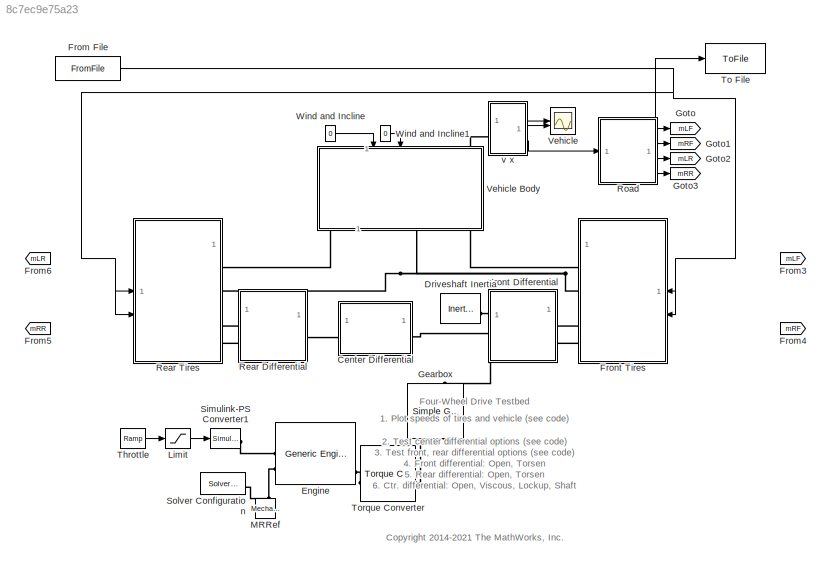
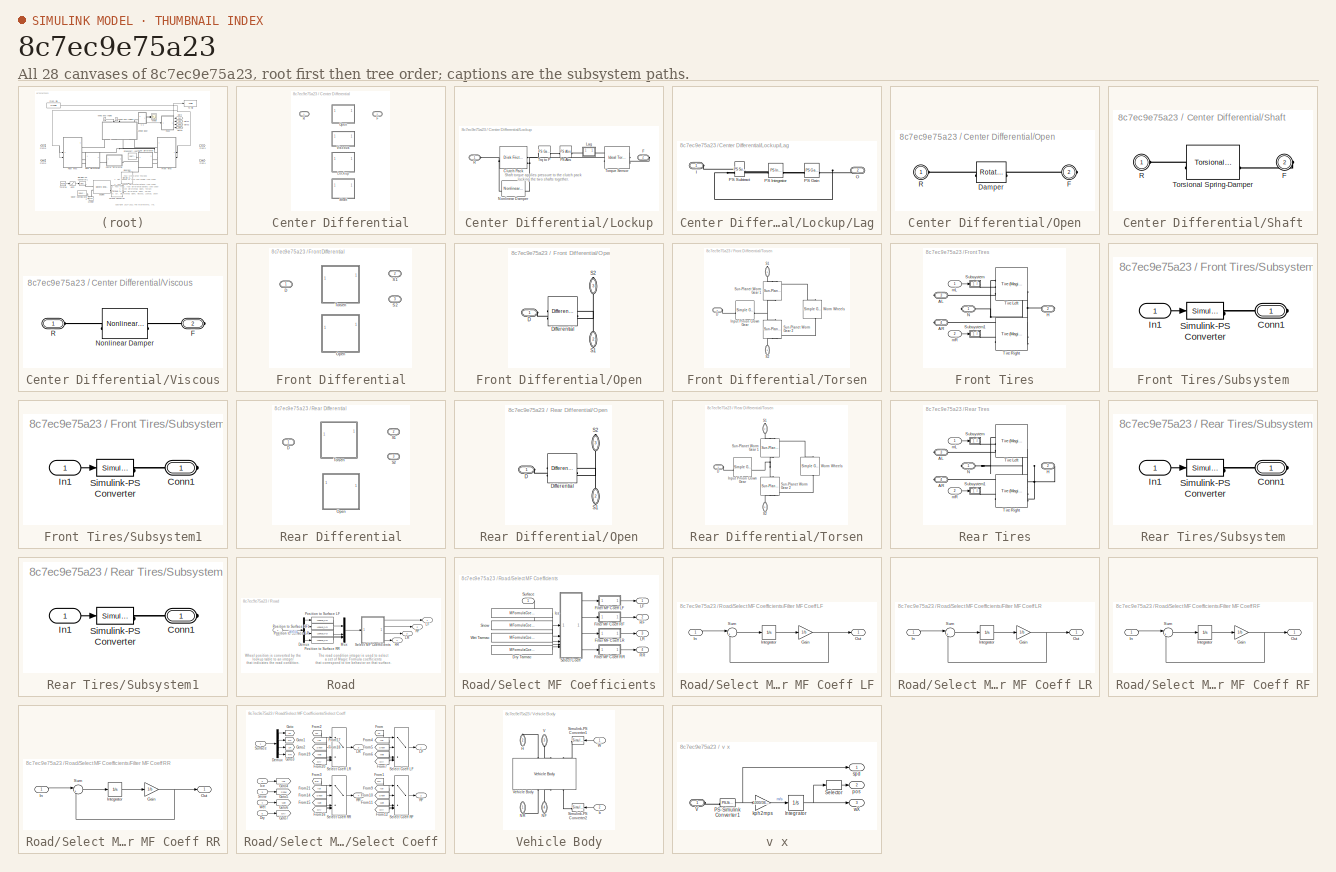
[diagram: thumbnail index - all 28 canvases of the model, root first then tree order]
MODEL slx_8c7ec9e75a23
KIND model
CONFIG AbsTol = 1e-3
CONFIG EnableMultiTasking = on
CONFIG FixedStep = auto
CONFIG MaxStep = auto
CONFIG MinStep = auto
CONFIG PreLoadFcn = MFormulaCoeff.DryTarmac = [10 1.9 1 0.97];\nMFormulaCoeff.WetTarmac = [12 2.3 0.82 1];\nMFormulaCoeff.Snow         = [5 2 0.3 1];\nMFormulaCoeff.Ice            = [4 2 0.1 1];\n
CONFIG RelTol = 1e-3
CONFIG SampleTimeConstraint = Unconstrained
CONFIG SolverName = VariableStepAuto
CONFIG StartTime = 0.0
CONFIG StopTime = 5
BLOCK [SubSystem] Center Differential
  AttributesFormatString = %<ActiveVariant>
  LabelModeActiveChoice = Viscous
  Variant = on
  VariantControlMode = label
BLOCK [PMIOPort] Center Differential/F
  Port = 2
  Side = Right
BLOCK [SubSystem] Center Differential/Lockup
  Tag = PublishSubsystem
  VariantControl = Lockup
BLOCK [Reference] Center Differential/Lockup/Clutch Pack  REF=sdl_lib/Clutches/Disk Friction Clutch
  SourceBlock = sdl_lib/Clutches/Disk Friction Clutch
  SourceType = Disk Friction Clutch
BLOCK [PMIOPort] Center Differential/Lockup/F
  Port = 2
  Side = Right
BLOCK [SubSystem] Center Differential/Lockup/Lag
  NameLocation = top
BLOCK [PMIOPort] Center Differential/Lockup/Lag/I
  Side = Left
BLOCK [PMIOPort] Center Differential/Lockup/Lag/O
  Port = 2
  Side = Right
BLOCK [Reference] Center Differential/Lockup/Lag/PS Gain  REF=fl_ps_legacy_lib/Legacy Physical
Signals/Functions/PS Gain
  SourceBlock = fl_ps_legacy_lib/Legacy Physical\nSignals/Functions/PS Gain
  SourceType = PS Gain
BLOCK [Reference] Center Differential/Lockup/Lag/PS Integrator  REF=fl_ps_legacy_lib/Legacy Physical
Signals/Linear Operators/PS Integrator
  SourceBlock = fl_ps_legacy_lib/Legacy Physical\nSignals/Linear Operators/PS Integrator
  SourceType = PS Integrator
BLOCK [Reference] Center Differential/Lockup/Lag/PS Subtract  REF=fl_ps_legacy_lib/Legacy Physical
Signals/Functions/PS Subtract
  SourceBlock = fl_ps_legacy_lib/Legacy Physical\nSignals/Functions/PS Subtract
  SourceType = PS Subtract
BLOCK [Reference] Center Differential/Lockup/Nonlinear Damper  REF=sdl_lib/Couplings & Drives/Springs & Dampers/Nonlinear Rotational
Damper
  SourceBlock = sdl_lib/Couplings & Drives/Springs & Dampers/Nonlinear Rotational\nDamper
  SourceType = Nonlinear Rotational\nDamper
BLOCK [Reference] Center Differential/Lockup/PS Abs  REF=fl_ps_legacy_lib/Legacy Physical
Signals/Nonlinear Operators/PS Abs
  NameLocation = top
  SourceBlock = fl_ps_legacy_lib/Legacy Physical\nSignals/Nonlinear Operators/PS Abs
  SourceType = PS Abs
BLOCK [PMIOPort] Center Differential/Lockup/R
  Side = Left
BLOCK [Reference] Center Differential/Lockup/Torque Sensor  REF=fl_lib/Mechanical/Mechanical Sensors/Ideal Torque Sensor
  SourceBlock = fl_lib/Mechanical/Mechanical Sensors/Ideal Torque Sensor
  SourceType = Ideal Torque Sensor
BLOCK [Reference] Center Differential/Lockup/Trq to P  REF=fl_ps_legacy_lib/Legacy Physical
Signals/Functions/PS Gain
  NameLocation = top
  SourceBlock = fl_ps_legacy_lib/Legacy Physical\nSignals/Functions/PS Gain
  SourceType = PS Gain
BLOCK [SubSystem] Center Differential/Open
  VariantControl = Open
BLOCK [Reference] Center Differential/Open/Damper  REF=fl_lib/Mechanical/Rotational Elements/Rotational Damper
  AttributesFormatString = Damping = %<D>
  SourceBlock = fl_lib/Mechanical/Rotational Elements/Rotational Damper
  SourceType = Rotational Damper
BLOCK [PMIOPort] Center Differential/Open/F
  Port = 2
  Side = Right
BLOCK [PMIOPort] Center Differential/Open/R
  Side = Left
BLOCK [PMIOPort] Center Differential/R
  Side = Left
BLOCK [SubSystem] Center Differential/Shaft
  VariantControl = Shaft
BLOCK [PMIOPort] Center Differential/Shaft/F
  Port = 2
  Side = Right
BLOCK [PMIOPort] Center Differential/Shaft/R
  Side = Left
BLOCK [Reference] Center Differential/Shaft/Torsional Spring-Damper  REF=sdl_lib/Couplings & Drives/Torsional
Spring-Damper
  SourceBlock = sdl_lib/Couplings & Drives/Torsional\nSpring-Damper
  SourceType = Torsional\nSpring-Damper
BLOCK [SubSystem] Center Differential/Viscous
  VariantControl = Viscous
BLOCK [PMIOPort] Center Differential/Viscous/F
  Port = 2
  Side = Right
BLOCK [Reference] Center Differential/Viscous/Nonlinear Damper  REF=sdl_lib/Couplings & Drives/Springs & Dampers/Nonlinear Rotational
Damper
  SourceBlock = sdl_lib/Couplings & Drives/Springs & Dampers/Nonlinear Rotational\nDamper
  SourceType = Nonlinear Rotational\nDamper
BLOCK [PMIOPort] Center Differential/Viscous/R
  Side = Left
BLOCK [Reference] Driveshaft Inertia  REF=fl_lib/Mechanical/Rotational Elements/Inertia
  NameLocation = top
  SourceBlock = fl_lib/Mechanical/Rotational Elements/Inertia
  SourceType = Inertia
BLOCK [Reference] Engine  REF=sdl_lib/Engines & Motors/Generic Engine
  SourceBlock = sdl_lib/Engines & Motors/Generic Engine
  SourceType = Generic Engine
BLOCK [FromFile] From File
  FileName = vecsent.mat
  SampleTime = 0
BLOCK [From] From3
  GotoTag = mLF
  NameLocation = top
  TagVisibility = global
BLOCK [From] From4
  GotoTag = mRF
  NameLocation = top
  TagVisibility = global
BLOCK [From] From5
  GotoTag = mRR
  NameLocation = top
  TagVisibility = global
BLOCK [From] From6
  GotoTag = mLR
  NameLocation = top
  TagVisibility = global
BLOCK [SubSystem] Front Differential
  AttributesFormatString = %<ActiveVariant>
  LabelModeActiveChoice = Open
  Variant = on
  VariantControlMode = label
BLOCK [PMIOPort] Front Differential/D
  Side = Left
BLOCK [SubSystem] Front Differential/Open
  VariantControl = Open
BLOCK [PMIOPort] Front Differential/Open/D
  Side = Left
BLOCK [Reference] Front Differential/Open/Differential  REF=sdl_lib/Gears/Differential
  SourceBlock = sdl_lib/Gears/Differential
  SourceType = Differential
BLOCK [PMIOPort] Front Differential/Open/S1
  NameLocation = left
  Port = 2
  Side = Right
BLOCK [PMIOPort] Front Differential/Open/S2
  NameLocation = left
  Port = 3
  Side = Right
BLOCK [PMIOPort] Front Differential/S1
  Port = 2
  Side = Right
BLOCK [PMIOPort] Front Differential/S2
  Port = 3
  Side = Right
BLOCK [SubSystem] Front Differential/Torsen
  VariantControl = Torsen
BLOCK [PMIOPort] Front Differential/Torsen/D
  Side = Left
BLOCK [Reference] Front Differential/Torsen/Input Pinion Crown Gear  REF=sdl_lib/Gears/Simple Gear
  SourceBlock = sdl_lib/Gears/Simple Gear
  SourceType = Simple Gear
BLOCK [PMIOPort] Front Differential/Torsen/S1
  NameLocation = left
  Port = 2
  Side = Right
BLOCK [PMIOPort] Front Differential/Torsen/S2
  NameLocation = left
  Port = 3
  Side = Right
BLOCK [Reference] Front Differential/Torsen/Sun-Planet Worm Gear 1  REF=sdl_lib/Gears/Planetary
Subcomponents/Sun-Planet Worm Gear
  NameLocation = right
  SourceBlock = sdl_lib/Gears/Planetary\nSubcomponents/Sun-Planet Worm Gear
  SourceType = Sun-Planet Worm Gear
BLOCK [Reference] Front Differential/Torsen/Sun-Planet Worm Gear 2  REF=sdl_lib/Gears/Planetary
Subcomponents/Sun-Planet Worm Gear
  NameLocation = right
  SourceBlock = sdl_lib/Gears/Planetary\nSubcomponents/Sun-Planet Worm Gear
  SourceType = Sun-Planet Worm Gear
BLOCK [Reference] Front Differential/Torsen/Worm Wheels  REF=sdl_lib/Gears/Simple Gear
  NameLocation = right
  SourceBlock = sdl_lib/Gears/Simple Gear
  SourceType = Simple Gear
BLOCK [SubSystem] Front Tires
BLOCK [PMIOPort] Front Tires/AL
  NameLocation = top
  Port = 3
  Side = Right
BLOCK [PMIOPort] Front Tires/AR
  Port = 4
  Side = Right
BLOCK [PMIOPort] Front Tires/H
  Port = 2
  Side = Right
BLOCK [PMIOPort] Front Tires/N
  NameLocation = top
  Side = Right
BLOCK [SubSystem] Front Tires/Subsystem
  NameLocation = top
BLOCK [PMIOPort] Front Tires/Subsystem/Conn1
  Side = Right
BLOCK [Inport] Front Tires/Subsystem/In1
BLOCK [Reference] Front Tires/Subsystem/Simulink-PS Converter  REF=nesl_utility/Simulink-PS
Converter
  SourceBlock = nesl_utility/Simulink-PS\nConverter
  SourceType = Simulink-PS\nConverter
BLOCK [SubSystem] Front Tires/Subsystem1
  NameLocation = top
BLOCK [PMIOPort] Front Tires/Subsystem1/Conn1
  Side = Right
BLOCK [Inport] Front Tires/Subsystem1/In1
BLOCK [Reference] Front Tires/Subsystem1/Simulink-PS Converter  REF=nesl_utility/Simulink-PS
Converter
  SourceBlock = nesl_utility/Simulink-PS\nConverter
  SourceType = Simulink-PS\nConverter
BLOCK [Reference] Front Tires/Tire Left  REF=sdl_lib/Tires & Vehicles/Tire (Magic Formula)
  NameLocation = top
  SourceBlock = sdl_lib/Tires & Vehicles/Tire (Magic Formula)
  SourceType = Tire (Magic Formula)
BLOCK [Reference] Front Tires/Tire Right  REF=sdl_lib/Tires & Vehicles/Tire (Magic Formula)
  SourceBlock = sdl_lib/Tires & Vehicles/Tire (Magic Formula)
  SourceType = Tire (Magic Formula)
BLOCK [Inport] Front Tires/mL
  NameLocation = top
BLOCK [Inport] Front Tires/mR
  Port = 2
BLOCK [Reference] Gearbox  REF=sdl_lib/Gears/Simple Gear
  NameLocation = left
  SourceBlock = sdl_lib/Gears/Simple Gear
  SourceType = Simple Gear
BLOCK [Goto] Goto
  GotoTag = mLF
  TagVisibility = global
BLOCK [Goto] Goto1
  GotoTag = mRF
  TagVisibility = global
BLOCK [Goto] Goto2
  GotoTag = mLR
  TagVisibility = global
BLOCK [Goto] Goto3
  GotoTag = mRR
  TagVisibility = global
BLOCK [Saturate] Limit
  LowerLimit = 0
  UpperLimit = 0.4
BLOCK [Reference] MRRef  REF=fl_lib/Mechanical/Rotational Elements/Mechanical
Rotational Reference
  NameLocation = left
  SourceBlock = fl_lib/Mechanical/Rotational Elements/Mechanical\nRotational Reference
  SourceType = Mechanical\nRotational Reference
BLOCK [SubSystem] Rear Differential
  AttributesFormatString = %<ActiveVariant>
  LabelModeActiveChoice = Open
  Variant = on
  VariantControlMode = label
BLOCK [PMIOPort] Rear Differential/D
  Side = Left
BLOCK [SubSystem] Rear Differential/Open
  Tag = PublishSubsystem
  VariantControl = Open
BLOCK [PMIOPort] Rear Differential/Open/D
  Side = Left
BLOCK [Reference] Rear Differential/Open/Differential  REF=sdl_lib/Gears/Differential
  SourceBlock = sdl_lib/Gears/Differential
  SourceType = Differential
BLOCK [PMIOPort] Rear Differential/Open/S1
  NameLocation = left
  Port = 2
  Side = Right
BLOCK [PMIOPort] Rear Differential/Open/S2
  NameLocation = left
  Port = 3
  Side = Right
BLOCK [PMIOPort] Rear Differential/S1
  Port = 2
  Side = Right
BLOCK [PMIOPort] Rear Differential/S2
  Port = 3
  Side = Right
BLOCK [SubSystem] Rear Differential/Torsen
  Tag = PublishSubsystem
  VariantControl = Torsen
BLOCK [PMIOPort] Rear Differential/Torsen/D
  NameLocation = top
  Side = Left
BLOCK [Reference] Rear Differential/Torsen/Input Pinion Crown Gear  REF=sdl_lib/Gears/Simple Gear
  SourceBlock = sdl_lib/Gears/Simple Gear
  SourceType = Simple Gear
BLOCK [PMIOPort] Rear Differential/Torsen/S1
  NameLocation = left
  Port = 2
  Side = Right
BLOCK [PMIOPort] Rear Differential/Torsen/S2
  NameLocation = left
  Port = 3
  Side = Right
BLOCK [Reference] Rear Differential/Torsen/Sun-Planet Worm Gear 1  REF=sdl_lib/Gears/Planetary
Subcomponents/Sun-Planet Worm Gear
  NameLocation = right
  SourceBlock = sdl_lib/Gears/Planetary\nSubcomponents/Sun-Planet Worm Gear
  SourceType = Sun-Planet Worm Gear
BLOCK [Reference] Rear Differential/Torsen/Sun-Planet Worm Gear 2  REF=sdl_lib/Gears/Planetary
Subcomponents/Sun-Planet Worm Gear
  NameLocation = right
  SourceBlock = sdl_lib/Gears/Planetary\nSubcomponents/Sun-Planet Worm Gear
  SourceType = Sun-Planet Worm Gear
BLOCK [Reference] Rear Differential/Torsen/Worm Wheels  REF=sdl_lib/Gears/Simple Gear
  NameLocation = right
  SourceBlock = sdl_lib/Gears/Simple Gear
  SourceType = Simple Gear
BLOCK [SubSystem] Rear Tires
BLOCK [PMIOPort] Rear Tires/AL
  NameLocation = top
  Port = 3
  Side = Right
BLOCK [PMIOPort] Rear Tires/AR
  Port = 4
  Side = Right
BLOCK [PMIOPort] Rear Tires/H
  Port = 2
  Side = Right
BLOCK [PMIOPort] Rear Tires/N
  NameLocation = top
  Side = Right
BLOCK [SubSystem] Rear Tires/Subsystem
  NameLocation = top
BLOCK [PMIOPort] Rear Tires/Subsystem/Conn1
  Side = Right
BLOCK [Inport] Rear Tires/Subsystem/In1
BLOCK [Reference] Rear Tires/Subsystem/Simulink-PS Converter  REF=nesl_utility/Simulink-PS
Converter
  SourceBlock = nesl_utility/Simulink-PS\nConverter
  SourceType = Simulink-PS\nConverter
BLOCK [SubSystem] Rear Tires/Subsystem1
  NameLocation = top
BLOCK [PMIOPort] Rear Tires/Subsystem1/Conn1
  Side = Right
BLOCK [Inport] Rear Tires/Subsystem1/In1
BLOCK [Reference] Rear Tires/Subsystem1/Simulink-PS Converter  REF=nesl_utility/Simulink-PS
Converter
  SourceBlock = nesl_utility/Simulink-PS\nConverter
  SourceType = Simulink-PS\nConverter
BLOCK [Reference] Rear Tires/Tire Left  REF=sdl_lib/Tires & Vehicles/Tire (Magic Formula)
  NameLocation = top
  SourceBlock = sdl_lib/Tires & Vehicles/Tire (Magic Formula)
  SourceType = Tire (Magic Formula)
BLOCK [Reference] Rear Tires/Tire Right  REF=sdl_lib/Tires & Vehicles/Tire (Magic Formula)
  SourceBlock = sdl_lib/Tires & Vehicles/Tire (Magic Formula)
  SourceType = Tire (Magic Formula)
BLOCK [Inport] Rear Tires/mL
  NameLocation = top
BLOCK [Inport] Rear Tires/mR
  Port = 2
BLOCK [SubSystem] Road
  AttributesFormatString = %<road_condition>
BLOCK [Demux] Road/Demux
BLOCK [Outport] Road/LF
  VectorParamsAs1DForOutWhenUnconnected = off
BLOCK [Outport] Road/LR
  Port = 3
  VectorParamsAs1DForOutWhenUnconnected = off
BLOCK [Mux] Road/Mux
  DisplayOption = bar
BLOCK [Lookup_n-D] Road/Position to Surface LF
  BeginIndexSearchUsingPreviousIndexResult = on
  BreakpointsForDimension1 = surface_xpos
  InputPortMap = u0
  InternalRulePriority = Speed
  InterpMethod = Flat
  LookupTableObject = ''
  NameLocation = top
  NumberOfTableDimensions = 1
  RndMeth = Simplest
  Table = surface_LF
BLOCK [Lookup_n-D] Road/Position to Surface LR
  BeginIndexSearchUsingPreviousIndexResult = on
  BreakpointsForDimension1 = surface_xpos
  InputPortMap = u0
  InternalRulePriority = Speed
  InterpMethod = Flat
  LookupTableObject = ''
  NameLocation = top
  NumberOfTableDimensions = 1
  RndMeth = Simplest
  Table = surface_LR
BLOCK [Lookup_n-D] Road/Position to Surface RF1
  BeginIndexSearchUsingPreviousIndexResult = on
  BreakpointsForDimension1 = surface_xpos
  InputPortMap = u0
  InternalRulePriority = Speed
  InterpMethod = Flat
  LookupTableObject = ''
  NameLocation = top
  NumberOfTableDimensions = 1
  RndMeth = Simplest
  Table = surface_RF
BLOCK [Lookup_n-D] Road/Position to Surface RR
  BeginIndexSearchUsingPreviousIndexResult = on
  BreakpointsForDimension1 = surface_xpos
  InputPortMap = u0
  InternalRulePriority = Speed
  InterpMethod = Flat
  LookupTableObject = ''
  NumberOfTableDimensions = 1
  RndMeth = Simplest
  Table = surface_RR
BLOCK [Outport] Road/RF
  Port = 2
  VectorParamsAs1DForOutWhenUnconnected = off
BLOCK [Outport] Road/RR
  Port = 4
  VectorParamsAs1DForOutWhenUnconnected = off
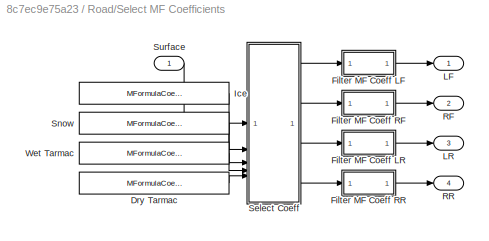
BLOCK [SubSystem] Road/Select MF Coefficients
BLOCK [Constant] Road/Select MF Coefficients/Dry Tarmac
  SampleTime = 0
  Value = MFormulaCoeff.DryTarmac
BLOCK [SubSystem] Road/Select MF Coefficients/Filter MF Coeff LF
BLOCK [Gain] Road/Select MF Coefficients/Filter MF Coeff LF/Gain
  Gain = 1/b
BLOCK [Inport] Road/Select MF Coefficients/Filter MF Coeff LF/In
BLOCK [Integrator] Road/Select MF Coefficients/Filter MF Coeff LF/Integrator
  InitialCondition = x_initial*b
BLOCK [Outport] Road/Select MF Coefficients/Filter MF Coeff LF/Out
  VectorParamsAs1DForOutWhenUnconnected = off
BLOCK [Sum] Road/Select MF Coefficients/Filter MF Coeff LF/Sum
  InputSameDT = on
  Inputs = |+-
  OutDataTypeStr = Inherit: Same as first input
  SaturateOnIntegerOverflow = on
BLOCK [SubSystem] Road/Select MF Coefficients/Filter MF Coeff LR
BLOCK [Gain] Road/Select MF Coefficients/Filter MF Coeff LR/Gain
  Gain = 1/b
BLOCK [Inport] Road/Select MF Coefficients/Filter MF Coeff LR/In
BLOCK [Integrator] Road/Select MF Coefficients/Filter MF Coeff LR/Integrator
  InitialCondition = x_initial*b
BLOCK [Outport] Road/Select MF Coefficients/Filter MF Coeff LR/Out
  VectorParamsAs1DForOutWhenUnconnected = off
BLOCK [Sum] Road/Select MF Coefficients/Filter MF Coeff LR/Sum
  InputSameDT = on
  Inputs = |+-
  OutDataTypeStr = Inherit: Same as first input
  SaturateOnIntegerOverflow = on
BLOCK [SubSystem] Road/Select MF Coefficients/Filter MF Coeff RF
BLOCK [Gain] Road/Select MF Coefficients/Filter MF Coeff RF/Gain
  Gain = 1/b
BLOCK [Inport] Road/Select MF Coefficients/Filter MF Coeff RF/In
BLOCK [Integrator] Road/Select MF Coefficients/Filter MF Coeff RF/Integrator
  InitialCondition = x_initial*b
BLOCK [Outport] Road/Select MF Coefficients/Filter MF Coeff RF/Out
  VectorParamsAs1DForOutWhenUnconnected = off
BLOCK [Sum] Road/Select MF Coefficients/Filter MF Coeff RF/Sum
  InputSameDT = on
  Inputs = |+-
  OutDataTypeStr = Inherit: Same as first input
  SaturateOnIntegerOverflow = on
BLOCK [SubSystem] Road/Select MF Coefficients/Filter MF Coeff RR
BLOCK [Gain] Road/Select MF Coefficients/Filter MF Coeff RR/Gain
  Gain = 1/b
BLOCK [Inport] Road/Select MF Coefficients/Filter MF Coeff RR/In
BLOCK [Integrator] Road/Select MF Coefficients/Filter MF Coeff RR/Integrator
  InitialCondition = x_initial*b
BLOCK [Outport] Road/Select MF Coefficients/Filter MF Coeff RR/Out
  VectorParamsAs1DForOutWhenUnconnected = off
BLOCK [Sum] Road/Select MF Coefficients/Filter MF Coeff RR/Sum
  InputSameDT = on
  Inputs = |+-
  OutDataTypeStr = Inherit: Same as first input
  SaturateOnIntegerOverflow = on
BLOCK [Constant] Road/Select MF Coefficients/Ice
  SampleTime = 0
  Value = MFormulaCoeff.Ice
BLOCK [Outport] Road/Select MF Coefficients/LF
  VectorParamsAs1DForOutWhenUnconnected = off
BLOCK [Outport] Road/Select MF Coefficients/LR
  Port = 3
  VectorParamsAs1DForOutWhenUnconnected = off
BLOCK [Outport] Road/Select MF Coefficients/RF
  Port = 2
  VectorParamsAs1DForOutWhenUnconnected = off
BLOCK [Outport] Road/Select MF Coefficients/RR
  Port = 4
  VectorParamsAs1DForOutWhenUnconnected = off
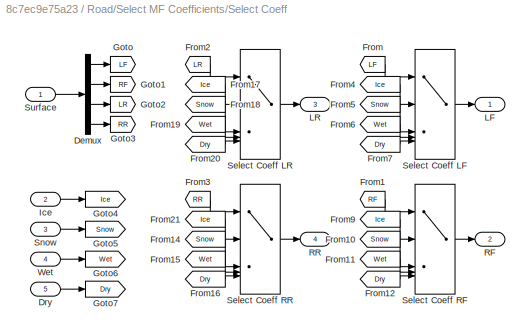
BLOCK [SubSystem] Road/Select MF Coefficients/Select Coeff
BLOCK [Demux] Road/Select MF Coefficients/Select Coeff/Demux
BLOCK [Inport] Road/Select MF Coefficients/Select Coeff/Dry
  Port = 5
BLOCK [From] Road/Select MF Coefficients/Select Coeff/From
  GotoTag = LF
BLOCK [From] Road/Select MF Coefficients/Select Coeff/From1
  GotoTag = RF
BLOCK [From] Road/Select MF Coefficients/Select Coeff/From10
  GotoTag = Snow
BLOCK [From] Road/Select MF Coefficients/Select Coeff/From11
  GotoTag = Wet
BLOCK [From] Road/Select MF Coefficients/Select Coeff/From12
  GotoTag = Dry
BLOCK [From] Road/Select MF Coefficients/Select Coeff/From14
  GotoTag = Snow
BLOCK [From] Road/Select MF Coefficients/Select Coeff/From15
  GotoTag = Wet
BLOCK [From] Road/Select MF Coefficients/Select Coeff/From16
  GotoTag = Dry
BLOCK [From] Road/Select MF Coefficients/Select Coeff/From17
  GotoTag = Ice
BLOCK [From] Road/Select MF Coefficients/Select Coeff/From18
  GotoTag = Snow
BLOCK [From] Road/Select MF Coefficients/Select Coeff/From19
  GotoTag = Wet
BLOCK [From] Road/Select MF Coefficients/Select Coeff/From2
  GotoTag = LR
BLOCK [From] Road/Select MF Coefficients/Select Coeff/From20
  GotoTag = Dry
BLOCK [From] Road/Select MF Coefficients/Select Coeff/From21
  GotoTag = Ice
BLOCK [From] Road/Select MF Coefficients/Select Coeff/From3
  GotoTag = RR
BLOCK [From] Road/Select MF Coefficients/Select Coeff/From4
  GotoTag = Ice
BLOCK [From] Road/Select MF Coefficients/Select Coeff/From5
  GotoTag = Snow
BLOCK [From] Road/Select MF Coefficients/Select Coeff/From6
  GotoTag = Wet
BLOCK [From] Road/Select MF Coefficients/Select Coeff/From7
  GotoTag = Dry
BLOCK [From] Road/Select MF Coefficients/Select Coeff/From9
  GotoTag = Ice
BLOCK [Goto] Road/Select MF Coefficients/Select Coeff/Goto
  GotoTag = LF
BLOCK [Goto] Road/Select MF Coefficients/Select Coeff/Goto1
  GotoTag = RF
BLOCK [Goto] Road/Select MF Coefficients/Select Coeff/Goto2
  GotoTag = LR
BLOCK [Goto] Road/Select MF Coefficients/Select Coeff/Goto3
  GotoTag = RR
BLOCK [Goto] Road/Select MF Coefficients/Select Coeff/Goto4
  GotoTag = Ice
BLOCK [Goto] Road/Select MF Coefficients/Select Coeff/Goto5
  GotoTag = Snow
BLOCK [Goto] Road/Select MF Coefficients/Select Coeff/Goto6
  GotoTag = Wet
BLOCK [Goto] Road/Select MF Coefficients/Select Coeff/Goto7
  GotoTag = Dry
BLOCK [Inport] Road/Select MF Coefficients/Select Coeff/Ice
  Port = 2
BLOCK [Outport] Road/Select MF Coefficients/Select Coeff/LF
  VectorParamsAs1DForOutWhenUnconnected = off
BLOCK [Outport] Road/Select MF Coefficients/Select Coeff/LR
  Port = 3
  VectorParamsAs1DForOutWhenUnconnected = off
BLOCK [Outport] Road/Select MF Coefficients/Select Coeff/RF
  Port = 2
  VectorParamsAs1DForOutWhenUnconnected = off
BLOCK [Outport] Road/Select MF Coefficients/Select Coeff/RR
  Port = 4
  VectorParamsAs1DForOutWhenUnconnected = off
BLOCK [MultiPortSwitch] Road/Select MF Coefficients/Select Coeff/Select Coeff LF
  InputSameDT = off
  Inputs = 4
  SaturateOnIntegerOverflow = off
BLOCK [MultiPortSwitch] Road/Select MF Coefficients/Select Coeff/Select Coeff LR
  InputSameDT = off
  Inputs = 4
  SaturateOnIntegerOverflow = off
BLOCK [MultiPortSwitch] Road/Select MF Coefficients/Select Coeff/Select Coeff RF
  InputSameDT = off
  Inputs = 4
  SaturateOnIntegerOverflow = off
BLOCK [MultiPortSwitch] Road/Select MF Coefficients/Select Coeff/Select Coeff RR
  InputSameDT = off
  Inputs = 4
  SaturateOnIntegerOverflow = off
BLOCK [Inport] Road/Select MF Coefficients/Select Coeff/Snow
  Port = 3
BLOCK [Inport] Road/Select MF Coefficients/Select Coeff/Surface
BLOCK [Inport] Road/Select MF Coefficients/Select Coeff/Wet
  Port = 4
BLOCK [Constant] Road/Select MF Coefficients/Snow
  SampleTime = 0
  Value = MFormulaCoeff.Snow
BLOCK [Inport] Road/Select MF Coefficients/Surface
  NameLocation = top
BLOCK [Constant] Road/Select MF Coefficients/Wet Tarmac
  SampleTime = 0
  Value = MFormulaCoeff.WetTarmac
BLOCK [Inport] Road/wX
BLOCK [Reference] Simulink-PS Converter1  REF=nesl_utility/Simulink-PS
Converter
  SourceBlock = nesl_utility/Simulink-PS\nConverter
  SourceType = Simulink-PS\nConverter
BLOCK [Reference] Solver Configuration  REF=nesl_utility/Solver
Configuration
  SourceBlock = nesl_utility/Solver\nConfiguration
  SourceType = Solver\nConfiguration
BLOCK [Reference] Throttle  REF=simulink/Sources/Ramp
  SourceBlock = simulink/Sources/Ramp
  SourceType = Ramp
BLOCK [ToFile] To File
  Filename = vecsentout.mat
BLOCK [Reference] Torque Converter  REF=sdl_lib/Couplings & Drives/Torque Converter
  SourceBlock = sdl_lib/Couplings & Drives/Torque Converter
  SourceType = Torque Converter
BLOCK [Scope] Vehicle
  Floating = off
  NumInputPorts = 2
  ScopeSpecificationString = Simulink.scopes.TimeScopeBlockCfg('CurrentConfiguration', extmgr.ConfigurationSet(extmgr.Configuration('Core','General UI',true),extmgr.Configuration('Core','Source UI',true),extmgr.Configuration('Sources','WiredSimulink',true,'DataLoggingVariableName','ScopeData1','DataLoggingSaveFormat','StructureWithTime','DataLoggingLimitDataPoints',true,'DataLoggingDecimation','1','DataLoggingDecimateData',tr...<+3861ch>
BLOCK [SubSystem] Vehicle Body
  NameLocation = left
BLOCK [PMIOPort] Vehicle Body/H
  NameLocation = right
  Port = 2
  Side = Right
BLOCK [PMIOPort] Vehicle Body/NF
  NameLocation = right
  Port = 4
  Side = Right
BLOCK [PMIOPort] Vehicle Body/NR
  NameLocation = right
  Side = Right
BLOCK [Reference] Vehicle Body/Simulink-PS Converter1  REF=nesl_utility/Simulink-PS
Converter
  NameLocation = top
  SourceBlock = nesl_utility/Simulink-PS\nConverter
  SourceType = Simulink-PS\nConverter
BLOCK [Reference] Vehicle Body/Simulink-PS Converter2  REF=nesl_utility/Simulink-PS
Converter
  NameLocation = top
  SourceBlock = nesl_utility/Simulink-PS\nConverter
  SourceType = Simulink-PS\nConverter
BLOCK [PMIOPort] Vehicle Body/V
  NameLocation = right
  Port = 3
  Side = Left
BLOCK [Reference] Vehicle Body/Vehicle Body  REF=sdl_lib/Tires & Vehicles/Vehicle Body
  NameLocation = right
  SourceBlock = sdl_lib/Tires & Vehicles/Vehicle Body
  SourceType = Vehicle Body
BLOCK [Inport] Vehicle Body/W
  NameLocation = top
BLOCK [Inport] Vehicle Body/b
  NameLocation = top
  Port = 2
BLOCK [Constant] Wind and Incline
  Value = 0
BLOCK [Constant] Wind and Incline1
  Value = 0
BLOCK [SubSystem] v x
BLOCK [Integrator] v x/Integrator
  InitialCondition = [3 3 0 0]
BLOCK [Reference] v x/PS-Simulink Converter1  REF=nesl_utility/PS-Simulink
Converter
  SourceBlock = nesl_utility/PS-Simulink\nConverter
  SourceType = PS-Simulink\nConverter
BLOCK [Selector] v x/Selector
  IndexOptions = Index vector (dialog)
  Indices = [3]
  InputPortWidth = 4
  OutputSizes = 1
BLOCK [PMIOPort] v x/V
  Side = Left
BLOCK [Gain] v x/kph2mps
  Gain = 1000/3600
BLOCK [Outport] v x/pos
  Port = 2
  VectorParamsAs1DForOutWhenUnconnected = off
BLOCK [Outport] v x/spd
  VectorParamsAs1DForOutWhenUnconnected = off
BLOCK [Outport] v x/wX
  Port = 3
  VectorParamsAs1DForOutWhenUnconnected = off
ANNOTATION (root): 1. Plot speeds of tires and vehicle ( see code ) 2. Test center differential options ( see code ) 3. Test front, rear differential options ( see code ) 4. Front differential: Open , Torsen 5. Rear differential: Open , Torsen 6. Ctr. differential: Open , Viscous , Lockup , Shaft 7. Explore simulation results using sscexplore 8. Learn more about this example
ANNOTATION (root): <copyright redacted>
ANNOTATION (root): Four-Wheel Drive Testbed
ANNOTATION Center Differential/Lockup: Shaft torque applies pressure to the clutch pack locking the two shafts together.
ANNOTATION Road: The road condition integer is used to select a set of Magic Formula coefficients that correspond to tire behavior on that surface.
ANNOTATION Road: Wheel position is converted by the lookup table to an integer that indicates the road condition.
NET From File:1 -> Front Tires:1, Front Tires:2, Rear Tires:1, Rear Tires:2
LINE Front Tires/Subsystem/In1:1 -> Front Tires/Subsystem/Simulink-PS Converter:1
LINE Front Tires/Subsystem1/In1:1 -> Front Tires/Subsystem1/Simulink-PS Converter:1
LINE Front Tires/mL:1 -> Front Tires/Subsystem:1
LINE Front Tires/mR:1 -> Front Tires/Subsystem1:1
LINE Limit:1 -> Simulink-PS Converter1:1
LINE Rear Tires/Subsystem/In1:1 -> Rear Tires/Subsystem/Simulink-PS Converter:1
LINE Rear Tires/Subsystem1/In1:1 -> Rear Tires/Subsystem1/Simulink-PS Converter:1
LINE Rear Tires/mL:1 -> Rear Tires/Subsystem:1
LINE Rear Tires/mR:1 -> Rear Tires/Subsystem1:1
LINE Road/Demux:1 -> Road/Position to Surface LF:1
LINE Road/Demux:2 -> Road/Position to Surface RF1:1
LINE Road/Demux:3 -> Road/Position to Surface LR:1
LINE Road/Demux:4 -> Road/Position to Surface RR:1
LINE Road/Mux:1 -> Road/Select MF Coefficients:1
LINE Road/Position to Surface LF:1 -> Road/Mux:1
LINE Road/Position to Surface LR:1 -> Road/Mux:3
LINE Road/Position to Surface RF1:1 -> Road/Mux:2
LINE Road/Position to Surface RR:1 -> Road/Mux:4
LINE Road/Select MF Coefficients/Dry Tarmac:1 -> Road/Select MF Coefficients/Select Coeff:5
NET Road/Select MF Coefficients/Filter MF Coeff LF/Gain:1 -> Road/Select MF Coefficients/Filter MF Coeff LF/Out:1, Road/Select MF Coefficients/Filter MF Coeff LF/Sum:2
LINE Road/Select MF Coefficients/Filter MF Coeff LF/In:1 -> Road/Select MF Coefficients/Filter MF Coeff LF/Sum:1
LINE Road/Select MF Coefficients/Filter MF Coeff LF/Integrator:1 -> Road/Select MF Coefficients/Filter MF Coeff LF/Gain:1
LINE Road/Select MF Coefficients/Filter MF Coeff LF/Sum:1 -> Road/Select MF Coefficients/Filter MF Coeff LF/Integrator:1
LINE Road/Select MF Coefficients/Filter MF Coeff LF:1 -> Road/Select MF Coefficients/LF:1
NET Road/Select MF Coefficients/Filter MF Coeff LR/Gain:1 -> Road/Select MF Coefficients/Filter MF Coeff LR/Out:1, Road/Select MF Coefficients/Filter MF Coeff LR/Sum:2
LINE Road/Select MF Coefficients/Filter MF Coeff LR/In:1 -> Road/Select MF Coefficients/Filter MF Coeff LR/Sum:1
LINE Road/Select MF Coefficients/Filter MF Coeff LR/Integrator:1 -> Road/Select MF Coefficients/Filter MF Coeff LR/Gain:1
LINE Road/Select MF Coefficients/Filter MF Coeff LR/Sum:1 -> Road/Select MF Coefficients/Filter MF Coeff LR/Integrator:1
LINE Road/Select MF Coefficients/Filter MF Coeff LR:1 -> Road/Select MF Coefficients/LR:1
NET Road/Select MF Coefficients/Filter MF Coeff RF/Gain:1 -> Road/Select MF Coefficients/Filter MF Coeff RF/Out:1, Road/Select MF Coefficients/Filter MF Coeff RF/Sum:2
LINE Road/Select MF Coefficients/Filter MF Coeff RF/In:1 -> Road/Select MF Coefficients/Filter MF Coeff RF/Sum:1
LINE Road/Select MF Coefficients/Filter MF Coeff RF/Integrator:1 -> Road/Select MF Coefficients/Filter MF Coeff RF/Gain:1
LINE Road/Select MF Coefficients/Filter MF Coeff RF/Sum:1 -> Road/Select MF Coefficients/Filter MF Coeff RF/Integrator:1
LINE Road/Select MF Coefficients/Filter MF Coeff RF:1 -> Road/Select MF Coefficients/RF:1
NET Road/Select MF Coefficients/Filter MF Coeff RR/Gain:1 -> Road/Select MF Coefficients/Filter MF Coeff RR/Out:1, Road/Select MF Coefficients/Filter MF Coeff RR/Sum:2
LINE Road/Select MF Coefficients/Filter MF Coeff RR/In:1 -> Road/Select MF Coefficients/Filter MF Coeff RR/Sum:1
LINE Road/Select MF Coefficients/Filter MF Coeff RR/Integrator:1 -> Road/Select MF Coefficients/Filter MF Coeff RR/Gain:1
LINE Road/Select MF Coefficients/Filter MF Coeff RR/Sum:1 -> Road/Select MF Coefficients/Filter MF Coeff RR/Integrator:1
LINE Road/Select MF Coefficients/Filter MF Coeff RR:1 -> Road/Select MF Coefficients/RR:1
LINE Road/Select MF Coefficients/Ice:1 -> Road/Select MF Coefficients/Select Coeff:2
LINE Road/Select MF Coefficients/Select Coeff/Demux:1 -> Road/Select MF Coefficients/Select Coeff/Goto:1
LINE Road/Select MF Coefficients/Select Coeff/Demux:2 -> Road/Select MF Coefficients/Select Coeff/Goto1:1
LINE Road/Select MF Coefficients/Select Coeff/Demux:3 -> Road/Select MF Coefficients/Select Coeff/Goto2:1
LINE Road/Select MF Coefficients/Select Coeff/Demux:4 -> Road/Select MF Coefficients/Select Coeff/Goto3:1
LINE Road/Select MF Coefficients/Select Coeff/Dry:1 -> Road/Select MF Coefficients/Select Coeff/Goto7:1
LINE Road/Select MF Coefficients/Select Coeff/From10:1 -> Road/Select MF Coefficients/Select Coeff/Select Coeff RF:3
LINE Road/Select MF Coefficients/Select Coeff/From11:1 -> Road/Select MF Coefficients/Select Coeff/Select Coeff RF:4
LINE Road/Select MF Coefficients/Select Coeff/From12:1 -> Road/Select MF Coefficients/Select Coeff/Select Coeff RF:5
LINE Road/Select MF Coefficients/Select Coeff/From14:1 -> Road/Select MF Coefficients/Select Coeff/Select Coeff RR:3
LINE Road/Select MF Coefficients/Select Coeff/From15:1 -> Road/Select MF Coefficients/Select Coeff/Select Coeff RR:4
LINE Road/Select MF Coefficients/Select Coeff/From16:1 -> Road/Select MF Coefficients/Select Coeff/Select Coeff RR:5
LINE Road/Select MF Coefficients/Select Coeff/From17:1 -> Road/Select MF Coefficients/Select Coeff/Select Coeff LR:2
LINE Road/Select MF Coefficients/Select Coeff/From18:1 -> Road/Select MF Coefficients/Select Coeff/Select Coeff LR:3
LINE Road/Select MF Coefficients/Select Coeff/From19:1 -> Road/Select MF Coefficients/Select Coeff/Select Coeff LR:4
LINE Road/Select MF Coefficients/Select Coeff/From1:1 -> Road/Select MF Coefficients/Select Coeff/Select Coeff RF:1
LINE Road/Select MF Coefficients/Select Coeff/From20:1 -> Road/Select MF Coefficients/Select Coeff/Select Coeff LR:5
LINE Road/Select MF Coefficients/Select Coeff/From21:1 -> Road/Select MF Coefficients/Select Coeff/Select Coeff RR:2
LINE Road/Select MF Coefficients/Select Coeff/From2:1 -> Road/Select MF Coefficients/Select Coeff/Select Coeff LR:1
LINE Road/Select MF Coefficients/Select Coeff/From3:1 -> Road/Select MF Coefficients/Select Coeff/Select Coeff RR:1
LINE Road/Select MF Coefficients/Select Coeff/From4:1 -> Road/Select MF Coefficients/Select Coeff/Select Coeff LF:2
LINE Road/Select MF Coefficients/Select Coeff/From5:1 -> Road/Select MF Coefficients/Select Coeff/Select Coeff LF:3
LINE Road/Select MF Coefficients/Select Coeff/From6:1 -> Road/Select MF Coefficients/Select Coeff/Select Coeff LF:4
LINE Road/Select MF Coefficients/Select Coeff/From7:1 -> Road/Select MF Coefficients/Select Coeff/Select Coeff LF:5
LINE Road/Select MF Coefficients/Select Coeff/From9:1 -> Road/Select MF Coefficients/Select Coeff/Select Coeff RF:2
LINE Road/Select MF Coefficients/Select Coeff/From:1 -> Road/Select MF Coefficients/Select Coeff/Select Coeff LF:1
LINE Road/Select MF Coefficients/Select Coeff/Ice:1 -> Road/Select MF Coefficients/Select Coeff/Goto4:1
LINE Road/Select MF Coefficients/Select Coeff/Select Coeff LF:1 -> Road/Select MF Coefficients/Select Coeff/LF:1
LINE Road/Select MF Coefficients/Select Coeff/Select Coeff LR:1 -> Road/Select MF Coefficients/Select Coeff/LR:1
LINE Road/Select MF Coefficients/Select Coeff/Select Coeff RF:1 -> Road/Select MF Coefficients/Select Coeff/RF:1
LINE Road/Select MF Coefficients/Select Coeff/Select Coeff RR:1 -> Road/Select MF Coefficients/Select Coeff/RR:1
LINE Road/Select MF Coefficients/Select Coeff/Snow:1 -> Road/Select MF Coefficients/Select Coeff/Goto5:1
LINE Road/Select MF Coefficients/Select Coeff/Surface:1 -> Road/Select MF Coefficients/Select Coeff/Demux:1
LINE Road/Select MF Coefficients/Select Coeff/Wet:1 -> Road/Select MF Coefficients/Select Coeff/Goto6:1
LINE Road/Select MF Coefficients/Select Coeff:1 -> Road/Select MF Coefficients/Filter MF Coeff LF:1
LINE Road/Select MF Coefficients/Select Coeff:2 -> Road/Select MF Coefficients/Filter MF Coeff RF:1
LINE Road/Select MF Coefficients/Select Coeff:3 -> Road/Select MF Coefficients/Filter MF Coeff LR:1
LINE Road/Select MF Coefficients/Select Coeff:4 -> Road/Select MF Coefficients/Filter MF Coeff RR:1
LINE Road/Select MF Coefficients/Snow:1 -> Road/Select MF Coefficients/Select Coeff:3
LINE Road/Select MF Coefficients/Surface:1 -> Road/Select MF Coefficients/Select Coeff:1
LINE Road/Select MF Coefficients/Wet Tarmac:1 -> Road/Select MF Coefficients/Select Coeff:4
LINE Road/Select MF Coefficients:1 -> Road/LF:1
LINE Road/Select MF Coefficients:2 -> Road/RF:1
LINE Road/Select MF Coefficients:3 -> Road/LR:1
LINE Road/Select MF Coefficients:4 -> Road/RR:1
LINE Road/wX:1 -> Road/Demux:1
NET Road:1 -> Goto:1, To File:1
LINE Road:2 -> Goto1:1
LINE Road:3 -> Goto2:1
LINE Road:4 -> Goto3:1
LINE Throttle:1 -> Limit:1
LINE Vehicle Body/W:1 -> Vehicle Body/Simulink-PS Converter1:1
LINE Vehicle Body/b:1 -> Vehicle Body/Simulink-PS Converter2:1
LINE Wind and Incline1:1 -> Vehicle Body:2
LINE Wind and Incline:1 -> Vehicle Body:1
NET v x/Integrator:1 -> v x/Selector:1, v x/wX:1
NET v x/PS-Simulink Converter1:1 -> v x/kph2mps:1, v x/spd:1
LINE v x/Selector:1 -> v x/pos:1
LINE v x/kph2mps:1 -> v x/Integrator:1
LINE v x:1 -> Vehicle:1
LINE v x:2 -> Vehicle:2
LINE v x:3 -> Road:1
PLINE Center Differential/Lockup/Clutch Pack:LConn1 -- Center Differential/Lockup/Trq to P:RConn1
PNET net1: Center Differential/Lockup/Clutch Pack:LConn2 -- Center Differential/Lockup/Nonlinear Damper:RConn1 -- Center Differential/Lockup/Torque Sensor:RConn1
PNET net2: Center Differential/Lockup/Clutch Pack:RConn1 -- Center Differential/Lockup/Nonlinear Damper:LConn1 -- Center Differential/Lockup/R:RConn1
PLINE Center Differential/Lockup/F:RConn1 -- Center Differential/Lockup/Torque Sensor:LConn1
PLINE Center Differential/Lockup/Lag/I:RConn1 -- Center Differential/Lockup/Lag/PS Subtract:LConn1
PNET net3: Center Differential/Lockup/Lag/O:RConn1 -- Center Differential/Lockup/Lag/PS Gain:RConn1 -- Center Differential/Lockup/Lag/PS Subtract:LConn2
PLINE Center Differential/Lockup/Lag/PS Gain:LConn1 -- Center Differential/Lockup/Lag/PS Integrator:RConn1
PLINE Center Differential/Lockup/Lag/PS Integrator:LConn1 -- Center Differential/Lockup/Lag/PS Subtract:RConn1
PLINE Center Differential/Lockup/Lag:LConn1 -- Center Differential/Lockup/Torque Sensor:RConn2
PLINE Center Differential/Lockup/Lag:RConn1 -- Center Differential/Lockup/PS Abs:LConn1
PLINE Center Differential/Lockup/PS Abs:RConn1 -- Center Differential/Lockup/Trq to P:LConn1
PLINE Center Differential/Open/Damper:LConn1 -- Center Differential/Open/R:RConn1
PLINE Center Differential/Open/Damper:RConn1 -- Center Differential/Open/F:RConn1
PLINE Center Differential/Shaft/F:RConn1 -- Center Differential/Shaft/Torsional Spring-Damper:RConn1
PLINE Center Differential/Shaft/R:RConn1 -- Center Differential/Shaft/Torsional Spring-Damper:LConn1
PLINE Center Differential/Viscous/F:RConn1 -- Center Differential/Viscous/Nonlinear Damper:RConn1
PLINE Center Differential/Viscous/Nonlinear Damper:LConn1 -- Center Differential/Viscous/R:RConn1
PLINE Center Differential:LConn1 -- Rear Differential:LConn1
PNET net4: Center Differential:RConn1 -- Driveshaft Inertia:LConn1 -- Front Differential:LConn1 -- Gearbox:RConn1
PLINE Engine:LConn1 -- Simulink-PS Converter1:RConn1
PNET net5: Engine:LConn2 -- MRRef:LConn1 -- Solver Configuration:RConn1
PLINE Engine:RConn3 -- Torque Converter:LConn1
PLINE Front Differential/Open/D:RConn1 -- Front Differential/Open/Differential:LConn1
PLINE Front Differential/Open/Differential:RConn1 -- Front Differential/Open/S1:RConn1
PLINE Front Differential/Open/Differential:RConn2 -- Front Differential/Open/S2:RConn1
PLINE Front Differential/Torsen/D:RConn1 -- Front Differential/Torsen/Input Pinion Crown Gear:LConn1
PNET net6: Front Differential/Torsen/Input Pinion Crown Gear:RConn1 -- Front Differential/Torsen/Sun-Planet Worm Gear 1:LConn1 -- Front Differential/Torsen/Sun-Planet Worm Gear 2:LConn1
PLINE Front Differential/Torsen/S1:RConn1 -- Front Differential/Torsen/Sun-Planet Worm Gear 1:RConn2
PLINE Front Differential/Torsen/S2:RConn1 -- Front Differential/Torsen/Sun-Planet Worm Gear 2:RConn2
PLINE Front Differential/Torsen/Sun-Planet Worm Gear 1:RConn1 -- Front Differential/Torsen/Worm Wheels:LConn1
PLINE Front Differential/Torsen/Sun-Planet Worm Gear 2:RConn1 -- Front Differential/Torsen/Worm Wheels:RConn1
PLINE Front Differential:RConn1 -- Front Tires:RConn3
PLINE Front Differential:RConn2 -- Front Tires:RConn4
PLINE Front Tires/AL:RConn1 -- Front Tires/Tire Left:LConn3
PLINE Front Tires/AR:RConn1 -- Front Tires/Tire Right:LConn3
PNET net7: Front Tires/H:RConn1 -- Front Tires/Tire Left:RConn2 -- Front Tires/Tire Right:RConn2
PNET net8: Front Tires/N:RConn1 -- Front Tires/Tire Left:LConn1 -- Front Tires/Tire Right:LConn1
PLINE Front Tires/Subsystem/Conn1:RConn1 -- Front Tires/Subsystem/Simulink-PS Converter:RConn1
PLINE Front Tires/Subsystem1/Conn1:RConn1 -- Front Tires/Subsystem1/Simulink-PS Converter:RConn1
PLINE Front Tires/Subsystem1:RConn1 -- Front Tires/Tire Right:LConn2
PLINE Front Tires/Subsystem:RConn1 -- Front Tires/Tire Left:LConn2
PLINE Front Tires:RConn1 -- Vehicle Body:RConn3
PNET net9: Front Tires:RConn2 -- Rear Tires:RConn2 -- Vehicle Body:RConn2
PLINE Gearbox:LConn1 -- Torque Converter:RConn1
PLINE Rear Differential/Open/D:RConn1 -- Rear Differential/Open/Differential:LConn1
PLINE Rear Differential/Open/Differential:RConn1 -- Rear Differential/Open/S1:RConn1
PLINE Rear Differential/Open/Differential:RConn2 -- Rear Differential/Open/S2:RConn1
PLINE Rear Differential/Torsen/D:RConn1 -- Rear Differential/Torsen/Input Pinion Crown Gear:LConn1
PNET net10: Rear Differential/Torsen/Input Pinion Crown Gear:RConn1 -- Rear Differential/Torsen/Sun-Planet Worm Gear 1:LConn1 -- Rear Differential/Torsen/Sun-Planet Worm Gear 2:LConn1
PLINE Rear Differential/Torsen/S1:RConn1 -- Rear Differential/Torsen/Sun-Planet Worm Gear 1:RConn2
PLINE Rear Differential/Torsen/S2:RConn1 -- Rear Differential/Torsen/Sun-Planet Worm Gear 2:RConn2
PLINE Rear Differential/Torsen/Sun-Planet Worm Gear 1:RConn1 -- Rear Differential/Torsen/Worm Wheels:LConn1
PLINE Rear Differential/Torsen/Sun-Planet Worm Gear 2:RConn1 -- Rear Differential/Torsen/Worm Wheels:RConn1
PLINE Rear Differential:RConn1 -- Rear Tires:RConn3
PLINE Rear Differential:RConn2 -- Rear Tires:RConn4
PLINE Rear Tires/AL:RConn1 -- Rear Tires/Tire Left:LConn3
PLINE Rear Tires/AR:RConn1 -- Rear Tires/Tire Right:LConn3
PNET net11: Rear Tires/H:RConn1 -- Rear Tires/Tire Left:RConn2 -- Rear Tires/Tire Right:RConn2
PNET net12: Rear Tires/N:RConn1 -- Rear Tires/Tire Left:LConn1 -- Rear Tires/Tire Right:LConn1
PLINE Rear Tires/Subsystem/Conn1:RConn1 -- Rear Tires/Subsystem/Simulink-PS Converter:RConn1
PLINE Rear Tires/Subsystem1/Conn1:RConn1 -- Rear Tires/Subsystem1/Simulink-PS Converter:RConn1
PLINE Rear Tires/Subsystem1:RConn1 -- Rear Tires/Tire Right:LConn2
PLINE Rear Tires/Subsystem:RConn1 -- Rear Tires/Tire Left:LConn2
PLINE Rear Tires:RConn1 -- Vehicle Body:RConn1
PLINE Vehicle Body/H:RConn1 -- Vehicle Body/Vehicle Body:LConn1
PLINE Vehicle Body/NF:RConn1 -- Vehicle Body/Vehicle Body:RConn2
PLINE Vehicle Body/NR:RConn1 -- Vehicle Body/Vehicle Body:RConn1
PLINE Vehicle Body/Simulink-PS Converter1:RConn1 -- Vehicle Body/Vehicle Body:LConn3
PLINE Vehicle Body/Simulink-PS Converter2:RConn1 -- Vehicle Body/Vehicle Body:RConn3
PLINE Vehicle Body/V:RConn1 -- Vehicle Body/Vehicle Body:LConn2
PLINE Vehicle Body:LConn1 -- v x:LConn1
PLINE v x/PS-Simulink Converter1:LConn1 -- v x/V:RConn1
note: NET lines group one-source signal fan-out (src -> all destinations, sorted); 1:1 wires keep LINE; PNET lines group multi-terminal physical nets as a canonical sorted terminal list (undirected conserving connections); 2-terminal nets keep the pairwise PLINE form
